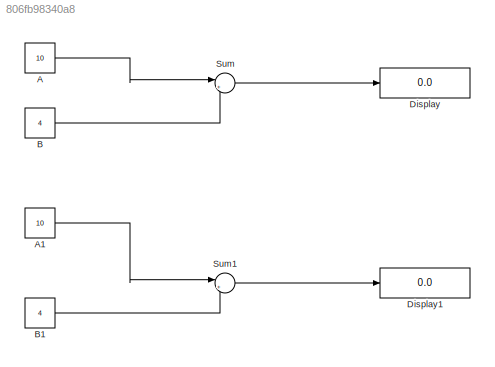
MODEL slx_806fb98340a8
KIND model
CONFIG AbsTol = auto
CONFIG EnableMultiTasking = off
CONFIG FixedStep = auto
CONFIG MaxStep = auto
CONFIG MinStep = auto
CONFIG RelTol = 1e-3
CONFIG SampleTimeConstraint = Unconstrained
CONFIG SolverName = VariableStepAuto
CONFIG StartTime = 0.0
CONFIG StopTime = 10.0
BLOCK [Constant] A
  Value = 10
BLOCK [Constant] A1
  Value = 10
BLOCK [Constant] B
  Value = 4
BLOCK [Constant] B1
  Value = 4
BLOCK [Display] Display
  Decimation = 1
BLOCK [Display] Display1
  Decimation = 1
BLOCK [Sum] Sum
  Inputs = |++
BLOCK [Sum] Sum1
  Inputs = |++
LINE A1:1 -> Sum1:1
LINE A:1 -> Sum:1
LINE B1:1 -> Sum1:2
LINE B:1 -> Sum:2
LINE Sum1:1 -> Display1:1
LINE Sum:1 -> Display:1
